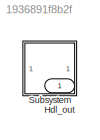
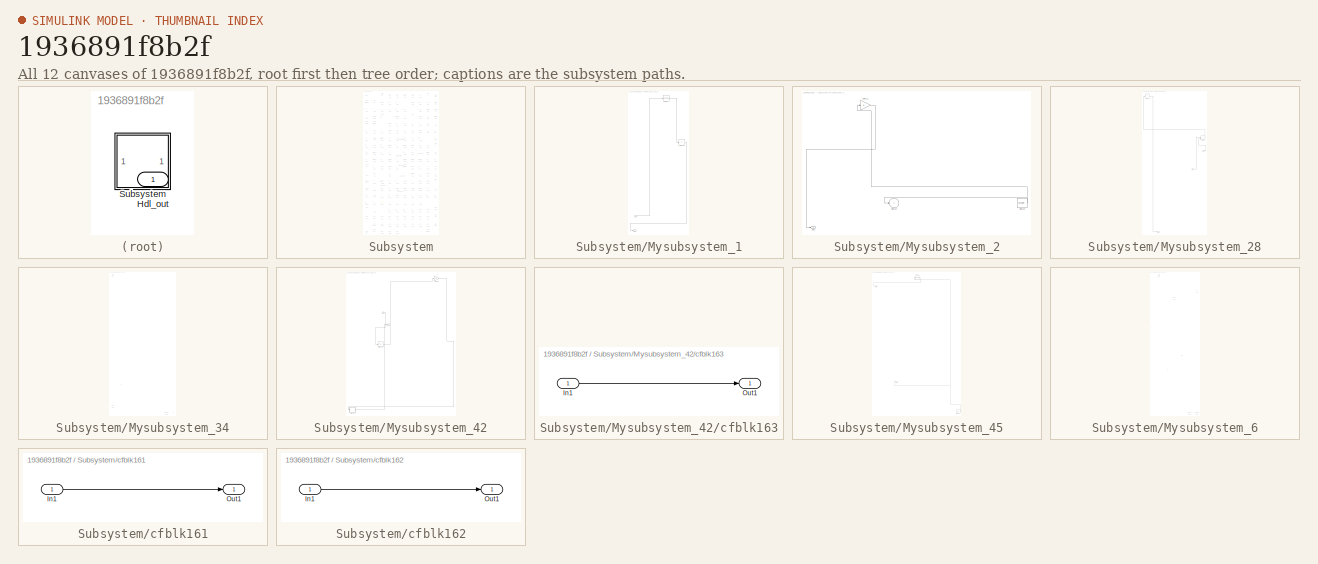
[diagram: thumbnail index - all 12 canvases of the model, root first then tree order]
MODEL slx_1936891f8b2f
KIND model
CONFIG AbsTol = auto
CONFIG EnableMultiTasking = off
CONFIG FixedStep = auto
CONFIG MaxStep = auto
CONFIG MinStep = auto
CONFIG RelTol = 1e-3
CONFIG SampleTimeConstraint = Unconstrained
CONFIG SolverName = VariableStepAuto
CONFIG StartTime = 0.0
CONFIG StopTime = 10.0
BLOCK [Outport] Hdl_out
  OutDataTypeStr = uint8
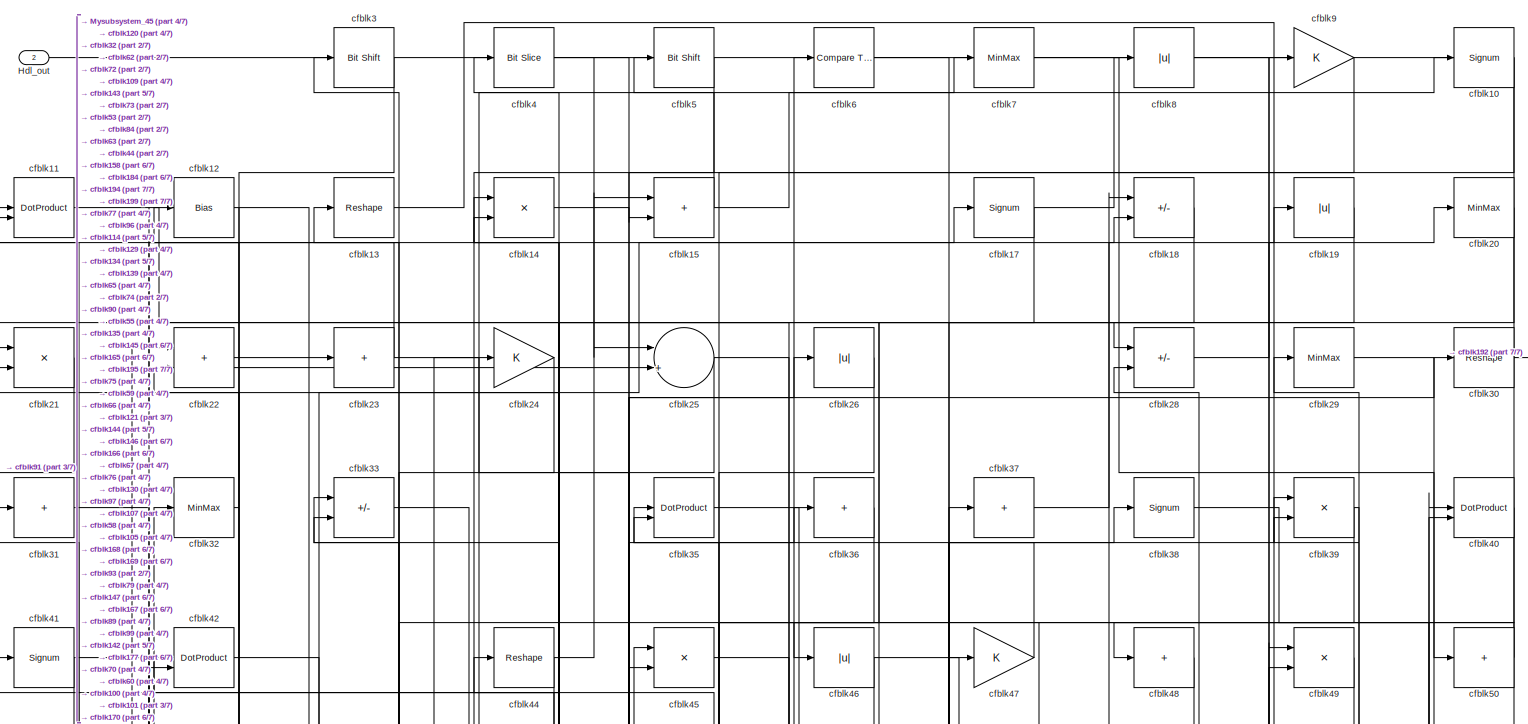
[diagram: Subsystem - part 1/7, full width, top band]
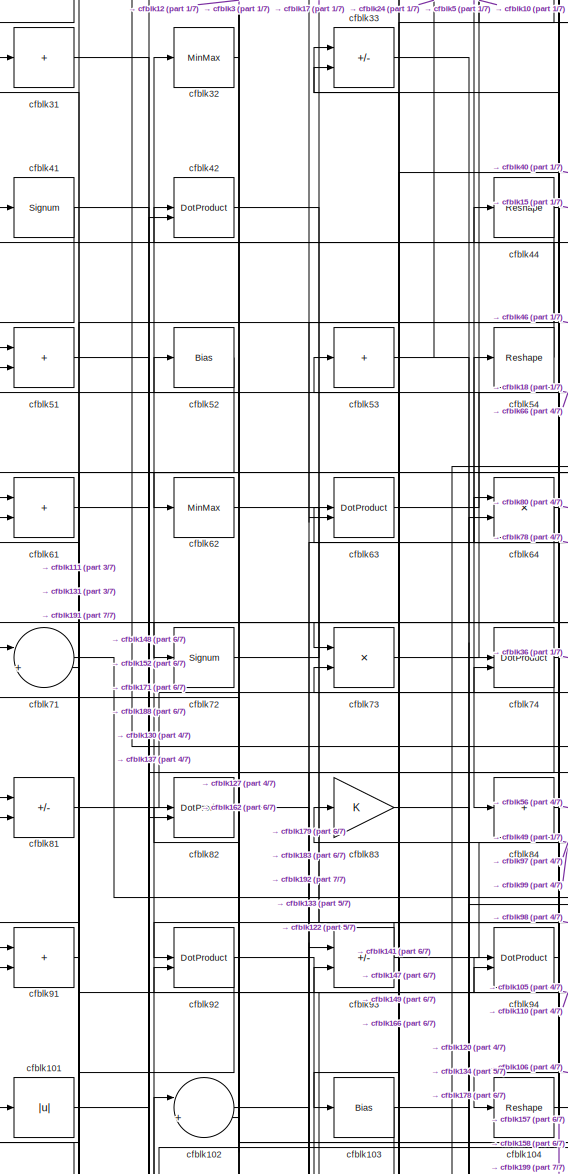
[diagram: Subsystem - part 2/7, middle left region]
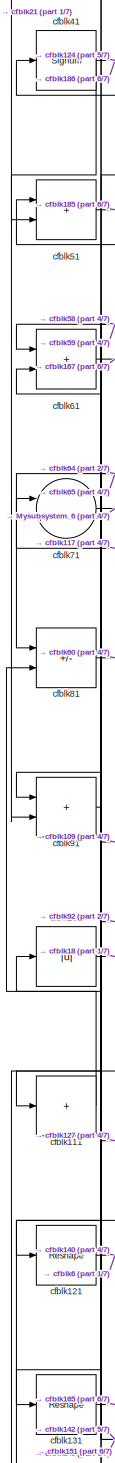
[diagram: Subsystem - part 3/7, middle left region]
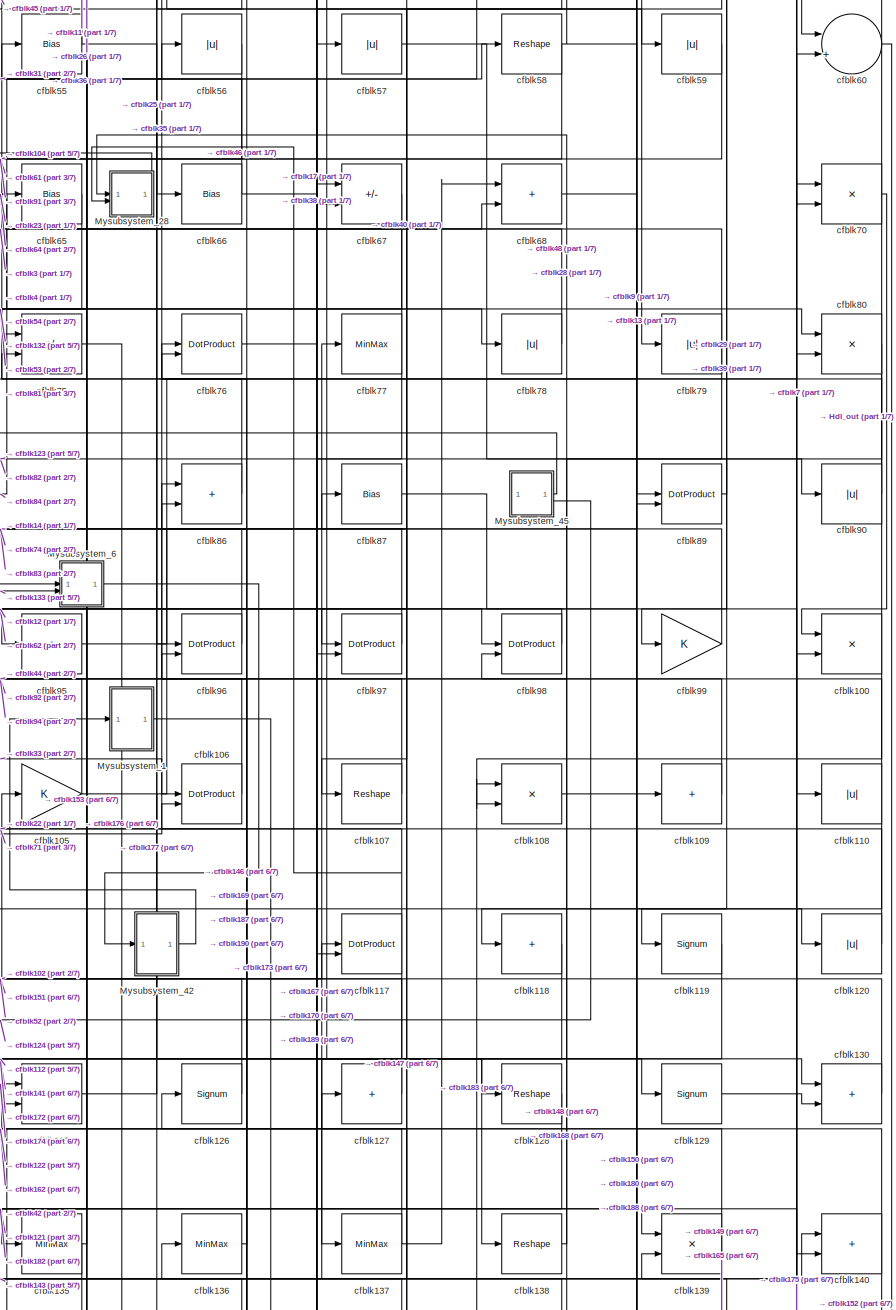
[diagram: Subsystem - part 4/7, middle right region]
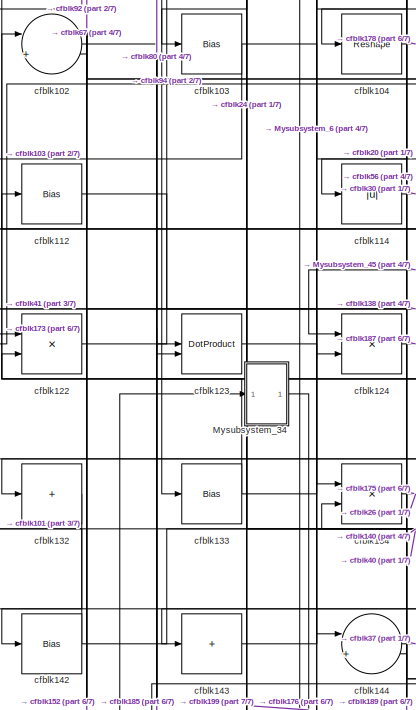
[diagram: Subsystem - part 5/7, middle left region]
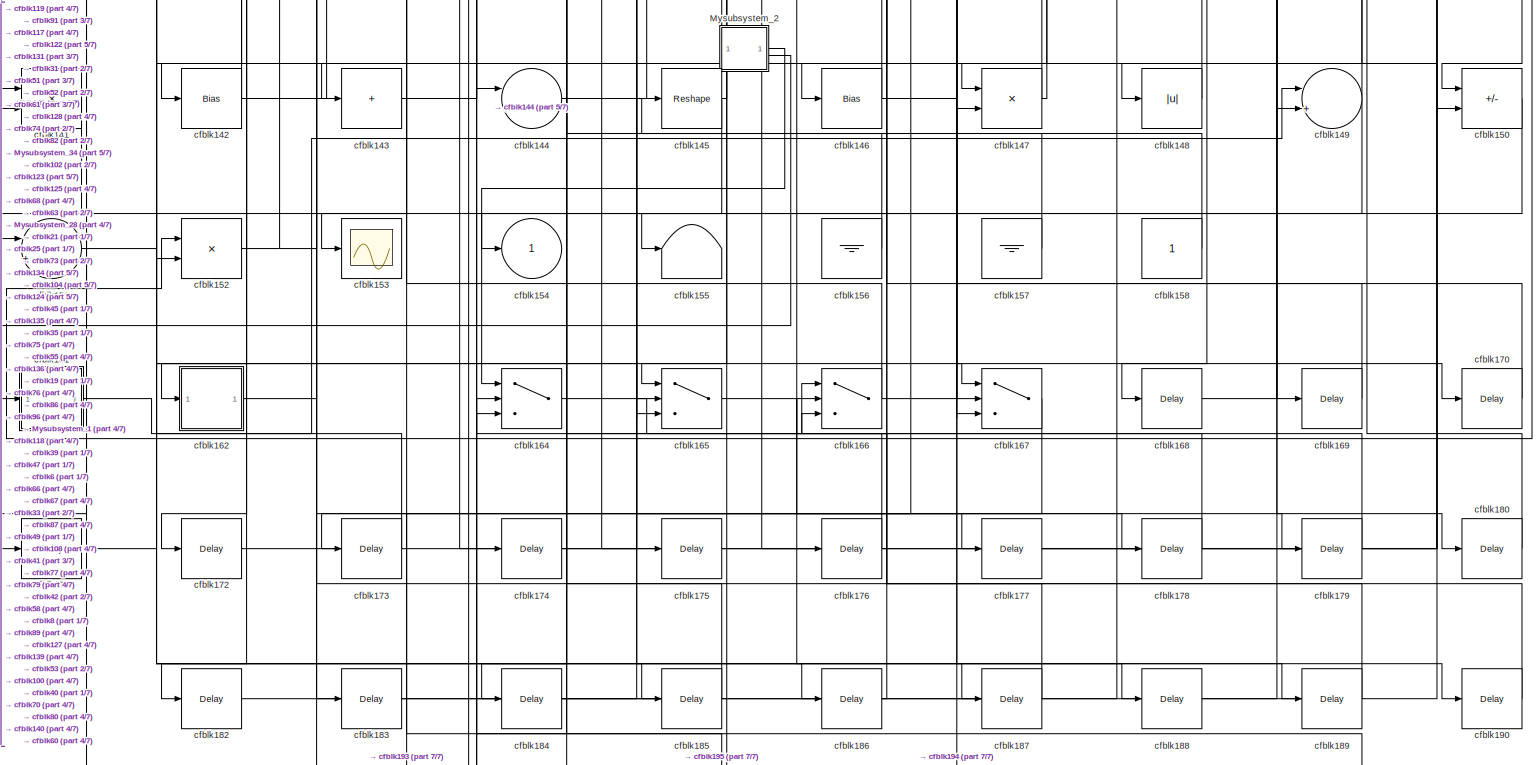
[diagram: Subsystem - part 6/7, full width, bottom band]
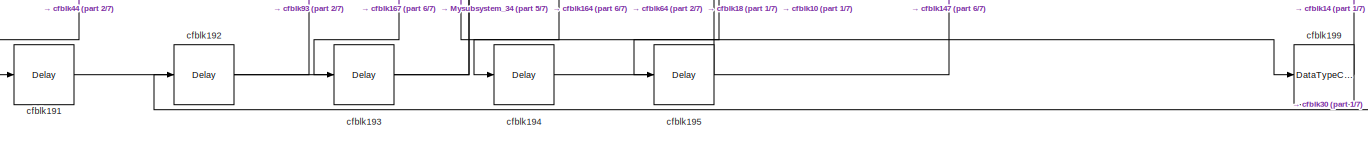
[diagram: Subsystem - part 7/7, full width, bottom band]
BLOCK [SubSystem] Subsystem
BLOCK [Outport] Subsystem/Hdl_out
  OutDataTypeStr = uint8
  Port = 2
BLOCK [SubSystem] Subsystem/Mysubsystem_1
  RTWFcnName = Mysubsystem_1
  RTWFcnNameOpts = User specified
  RTWFileNameOpts = Use function name
  RTWSystemCode = Reusable function
  TreatAsAtomicUnit = on
BLOCK [Inport] Subsystem/Mysubsystem_1/In1
BLOCK [Outport] Subsystem/Mysubsystem_1/Out1
BLOCK [Sum] Subsystem/Mysubsystem_1/cfblk116
  IconShape = rectangular
  Inputs = +
BLOCK [Reshape] Subsystem/Mysubsystem_1/cfblk85
BLOCK [SubSystem] Subsystem/Mysubsystem_2
  RTWFcnName = Mysubsystem_2
  RTWFcnNameOpts = User specified
  RTWFileNameOpts = Use function name
  RTWSystemCode = Reusable function
  TreatAsAtomicUnit = on
BLOCK [Outport] Subsystem/Mysubsystem_2/Out2
  Port = 2
BLOCK [Gain] Subsystem/Mysubsystem_2/cfblk113
BLOCK [Outport] Subsystem/Mysubsystem_2/cfblk154
  VectorParamsAs1DForOutWhenUnconnected = off
BLOCK [Reference] Subsystem/Mysubsystem_2/cfblk159  REF=hdlsllib/Sources/Counter
Free-Running
  SourceBlock = hdlsllib/Sources/Counter\nFree-Running
  SourceType = Counter Free-Running
BLOCK [SubSystem] Subsystem/Mysubsystem_28
  RTWFcnName = Mysubsystem_28
  RTWFcnNameOpts = User specified
  RTWFileNameOpts = Use function name
  RTWSystemCode = Reusable function
  TreatAsAtomicUnit = on
BLOCK [Inport] Subsystem/Mysubsystem_28/In1
BLOCK [Inport] Subsystem/Mysubsystem_28/In2
  Port = 2
BLOCK [Outport] Subsystem/Mysubsystem_28/Out1
BLOCK [Sum] Subsystem/Mysubsystem_28/cfblk43
  IconShape = rectangular
  Inputs = +
BLOCK [Product] Subsystem/Mysubsystem_28/cfblk88
  Inputs = */
  RndMeth = Zero
  SaturateOnIntegerOverflow = on
BLOCK [SubSystem] Subsystem/Mysubsystem_34
  RTWFcnName = Mysubsystem_34
  RTWFcnNameOpts = User specified
  RTWFileNameOpts = Use function name
  RTWSystemCode = Reusable function
  TreatAsAtomicUnit = on
BLOCK [Inport] Subsystem/Mysubsystem_34/In1
BLOCK [Reference] Subsystem/Mysubsystem_34/cfblk1  REF=simulink/Logic and Bit
Operations/Bit Set
  LibrarySourceBlock = hdlsllib/Logic and Bit\nOperations/Bit Set
  SourceBlock = simulink/Logic and Bit\nOperations/Bit Set
  SourceType = Bit Set
BLOCK [Delay] Subsystem/Mysubsystem_34/cfblk181
  InputPortMap = u0
  SampleTime = 1
BLOCK [DataTypeConversion] Subsystem/Mysubsystem_34/cfblk198
  OutDataTypeStr = boolean
  RndMeth = Floor
  SaturateOnIntegerOverflow = off
BLOCK [Outport] Subsystem/Mysubsystem_34/y
BLOCK [SubSystem] Subsystem/Mysubsystem_42
  RTWFcnName = Mysubsystem_42
  RTWFcnNameOpts = User specified
  RTWFileNameOpts = Use function name
  RTWSystemCode = Reusable function
  TreatAsAtomicUnit = on
BLOCK [Inport] Subsystem/Mysubsystem_42/In1
BLOCK [Outport] Subsystem/Mysubsystem_42/Out1
BLOCK [Abs] Subsystem/Mysubsystem_42/cfblk115
  SaturateOnIntegerOverflow = off
BLOCK [SubSystem] Subsystem/Mysubsystem_42/cfblk163
  LibrarySourceBlock = hdlsllib/Ports &\nSubsystems/Subsystem
BLOCK [Inport] Subsystem/Mysubsystem_42/cfblk163/In1
BLOCK [Outport] Subsystem/Mysubsystem_42/cfblk163/Out1
BLOCK [Gain] Subsystem/Mysubsystem_42/cfblk69
BLOCK [SubSystem] Subsystem/Mysubsystem_45
  RTWFcnName = Mysubsystem_45
  RTWFcnNameOpts = User specified
  RTWFileNameOpts = Use function name
  RTWSystemCode = Reusable function
  TreatAsAtomicUnit = on
BLOCK [Outport] Subsystem/Mysubsystem_45/Out1
BLOCK [Outport] Subsystem/Mysubsystem_45/Out2
  Port = 2
BLOCK [Reshape] Subsystem/Mysubsystem_45/cfblk16
BLOCK [Ground] Subsystem/Mysubsystem_45/cfblk160
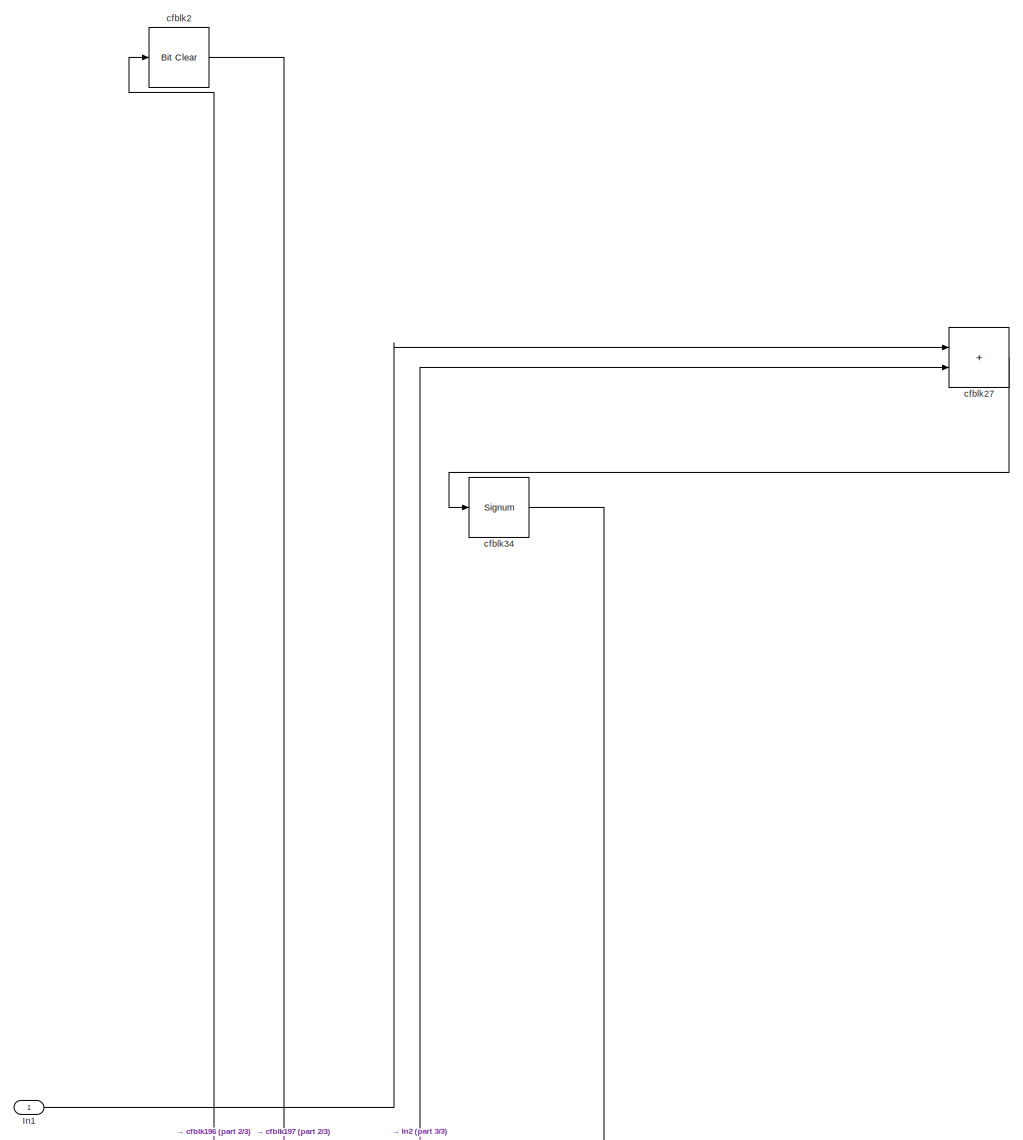
[diagram: Subsystem/Mysubsystem_6 - part 1/3, full width, top band]
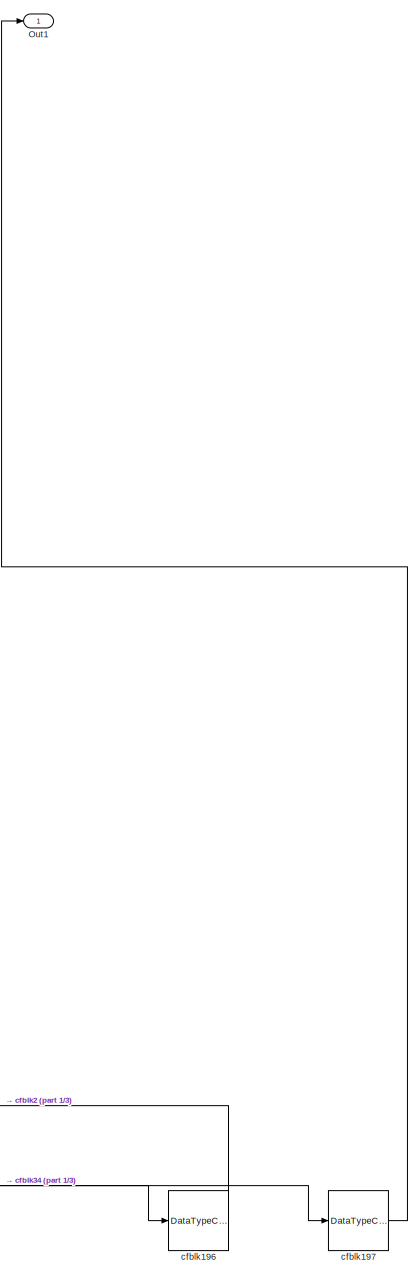
[diagram: Subsystem/Mysubsystem_6 - part 2/3, bottom right region]
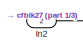
[diagram: Subsystem/Mysubsystem_6 - part 3/3, bottom center region]
BLOCK [SubSystem] Subsystem/Mysubsystem_6
  RTWFcnName = Mysubsystem_6
  RTWFcnNameOpts = User specified
  RTWFileNameOpts = Use function name
  RTWSystemCode = Reusable function
  TreatAsAtomicUnit = on
BLOCK [Inport] Subsystem/Mysubsystem_6/In1
BLOCK [Inport] Subsystem/Mysubsystem_6/In2
  Port = 2
BLOCK [Outport] Subsystem/Mysubsystem_6/Out1
BLOCK [DataTypeConversion] Subsystem/Mysubsystem_6/cfblk196
  OutDataTypeStr = boolean
  RndMeth = Floor
  SaturateOnIntegerOverflow = off
BLOCK [DataTypeConversion] Subsystem/Mysubsystem_6/cfblk197
  OutDataTypeStr = uint8
  RndMeth = Floor
  SaturateOnIntegerOverflow = off
BLOCK [Reference] Subsystem/Mysubsystem_6/cfblk2  REF=simulink/Logic and Bit
Operations/Bit Clear
  LibrarySourceBlock = hdlsllib/Logic and Bit\nOperations/Bit Clear
  SourceBlock = simulink/Logic and Bit\nOperations/Bit Clear
  SourceType = Bit Clear
BLOCK [Sum] Subsystem/Mysubsystem_6/cfblk27
  IconShape = rectangular
BLOCK [Signum] Subsystem/Mysubsystem_6/cfblk34
BLOCK [Signum] Subsystem/cfblk10
BLOCK [Product] Subsystem/cfblk100
  Inputs = */
  OutDataTypeStr = uint8
  RndMeth = Zero
  SaturateOnIntegerOverflow = on
BLOCK [Abs] Subsystem/cfblk101
  OutDataTypeStr = uint8
  SaturateOnIntegerOverflow = off
BLOCK [Sum] Subsystem/cfblk102
  Inputs = |++
  OutDataTypeStr = uint8
BLOCK [Bias] Subsystem/cfblk103
  Bias = 0.0
  SaturateOnIntegerOverflow = off
BLOCK [Reshape] Subsystem/cfblk104
BLOCK [Gain] Subsystem/cfblk105
  OutDataTypeStr = uint8
BLOCK [DotProduct] Subsystem/cfblk106
  OutDataTypeStr = uint8
BLOCK [Reshape] Subsystem/cfblk107
BLOCK [Product] Subsystem/cfblk108
  Inputs = */
  OutDataTypeStr = uint8
  RndMeth = Zero
  SaturateOnIntegerOverflow = on
BLOCK [Sum] Subsystem/cfblk109
  IconShape = rectangular
  Inputs = +
  OutDataTypeStr = uint8
BLOCK [DotProduct] Subsystem/cfblk11
  OutDataTypeStr = uint8
BLOCK [Abs] Subsystem/cfblk110
  OutDataTypeStr = uint8
  SaturateOnIntegerOverflow = off
BLOCK [Sum] Subsystem/cfblk111
  IconShape = rectangular
  Inputs = +
  OutDataTypeStr = uint8
BLOCK [Bias] Subsystem/cfblk112
  Bias = 0.0
  SaturateOnIntegerOverflow = off
BLOCK [Abs] Subsystem/cfblk114
  OutDataTypeStr = uint8
  SaturateOnIntegerOverflow = off
BLOCK [DotProduct] Subsystem/cfblk117
  OutDataTypeStr = uint8
BLOCK [Sum] Subsystem/cfblk118
  IconShape = rectangular
  Inputs = +
  OutDataTypeStr = uint8
BLOCK [Signum] Subsystem/cfblk119
BLOCK [Bias] Subsystem/cfblk12
  Bias = 0.0
  SaturateOnIntegerOverflow = off
BLOCK [Abs] Subsystem/cfblk120
  OutDataTypeStr = uint8
  SaturateOnIntegerOverflow = off
BLOCK [Reshape] Subsystem/cfblk121
BLOCK [Product] Subsystem/cfblk122
  Inputs = */
  OutDataTypeStr = uint8
  RndMeth = Zero
  SaturateOnIntegerOverflow = on
BLOCK [DotProduct] Subsystem/cfblk123
  OutDataTypeStr = uint8
BLOCK [Product] Subsystem/cfblk124
  Inputs = */
  OutDataTypeStr = uint8
  RndMeth = Zero
  SaturateOnIntegerOverflow = on
BLOCK [Sum] Subsystem/cfblk125
  IconShape = rectangular
  OutDataTypeStr = uint8
BLOCK [Signum] Subsystem/cfblk126
BLOCK [Sum] Subsystem/cfblk127
  IconShape = rectangular
  Inputs = +
  OutDataTypeStr = uint8
BLOCK [Reshape] Subsystem/cfblk128
BLOCK [Signum] Subsystem/cfblk129
BLOCK [Reshape] Subsystem/cfblk13
BLOCK [Sum] Subsystem/cfblk130
  IconShape = rectangular
  OutDataTypeStr = uint8
BLOCK [Reshape] Subsystem/cfblk131
BLOCK [Sum] Subsystem/cfblk132
  IconShape = rectangular
  Inputs = +
  OutDataTypeStr = uint8
BLOCK [Bias] Subsystem/cfblk133
  Bias = 0.0
  SaturateOnIntegerOverflow = off
BLOCK [Product] Subsystem/cfblk134
  Inputs = */
  OutDataTypeStr = uint8
  RndMeth = Zero
  SaturateOnIntegerOverflow = on
BLOCK [MinMax] Subsystem/cfblk135
  OutDataTypeStr = uint8
BLOCK [MinMax] Subsystem/cfblk136
  OutDataTypeStr = uint8
BLOCK [MinMax] Subsystem/cfblk137
  OutDataTypeStr = uint8
BLOCK [Reshape] Subsystem/cfblk138
BLOCK [Product] Subsystem/cfblk139
  Inputs = */
  OutDataTypeStr = uint8
  RndMeth = Zero
  SaturateOnIntegerOverflow = on
BLOCK [Product] Subsystem/cfblk14
  Inputs = */
  OutDataTypeStr = uint8
  RndMeth = Zero
  SaturateOnIntegerOverflow = on
BLOCK [Sum] Subsystem/cfblk140
  IconShape = rectangular
  OutDataTypeStr = uint8
BLOCK [Product] Subsystem/cfblk141
  Inputs = */
  OutDataTypeStr = uint8
  RndMeth = Zero
  SaturateOnIntegerOverflow = on
BLOCK [Bias] Subsystem/cfblk142
  Bias = 0.0
  SaturateOnIntegerOverflow = off
BLOCK [Sum] Subsystem/cfblk143
  IconShape = rectangular
  Inputs = +
  OutDataTypeStr = uint8
BLOCK [Sum] Subsystem/cfblk144
  Inputs = |++
  OutDataTypeStr = uint8
BLOCK [Reshape] Subsystem/cfblk145
BLOCK [Bias] Subsystem/cfblk146
  Bias = 0.0
  SaturateOnIntegerOverflow = off
BLOCK [Product] Subsystem/cfblk147
  Inputs = */
  OutDataTypeStr = uint8
  RndMeth = Zero
  SaturateOnIntegerOverflow = on
BLOCK [Abs] Subsystem/cfblk148
  OutDataTypeStr = uint8
  SaturateOnIntegerOverflow = off
BLOCK [Sum] Subsystem/cfblk149
  Inputs = |++
  OutDataTypeStr = uint8
BLOCK [Sum] Subsystem/cfblk15
  IconShape = rectangular
  OutDataTypeStr = uint8
BLOCK [Sum] Subsystem/cfblk150
  IconShape = rectangular
  Inputs = +-
  OutDataTypeStr = uint8
BLOCK [Sum] Subsystem/cfblk151
  Inputs = |++
  OutDataTypeStr = uint8
BLOCK [Product] Subsystem/cfblk152
  Inputs = */
  OutDataTypeStr = uint8
  RndMeth = Zero
  SaturateOnIntegerOverflow = on
BLOCK [Scope] Subsystem/cfblk153
  Floating = off
  NumInputPorts = 1
  ScopeSpecificationString = Simulink.scopes.TimeScopeBlockCfg('CurrentConfiguration', extmgr.ConfigurationSet(extmgr.Configuration('Core','General UI',true),extmgr.Configuration('Core','Source UI',true),extmgr.Configuration('Sources','WiredSimulink',true,'DataLoggingSaveFormat','Array','DataLoggingLimitDataPoints',true,'DataLoggingDecimation','1'),extmgr.Configuration('Visuals','Time Domain',true,'DisplayPropertyDefaults',st...<+829ch>
BLOCK [Outport] Subsystem/cfblk154
  OutDataTypeStr = uint8
  VectorParamsAs1DForOutWhenUnconnected = off
BLOCK [Terminator] Subsystem/cfblk155
BLOCK [Ground] Subsystem/cfblk156
BLOCK [Ground] Subsystem/cfblk157
BLOCK [Constant] Subsystem/cfblk158
  OutDataTypeStr = uint8
  SampleTime = -1
BLOCK [SubSystem] Subsystem/cfblk161
  LibrarySourceBlock = hdlsllib/Ports &\nSubsystems/Subsystem
BLOCK [Inport] Subsystem/cfblk161/In1
BLOCK [Outport] Subsystem/cfblk161/Out1
BLOCK [SubSystem] Subsystem/cfblk162
  LibrarySourceBlock = hdlsllib/Ports &\nSubsystems/Subsystem
BLOCK [Inport] Subsystem/cfblk162/In1
BLOCK [Outport] Subsystem/cfblk162/Out1
BLOCK [Switch] Subsystem/cfblk164
  InputSameDT = off
  OutDataTypeStr = uint8
  SaturateOnIntegerOverflow = off
BLOCK [Switch] Subsystem/cfblk165
  InputSameDT = off
  OutDataTypeStr = uint8
  SaturateOnIntegerOverflow = off
BLOCK [Switch] Subsystem/cfblk166
  InputSameDT = off
  OutDataTypeStr = uint8
  SaturateOnIntegerOverflow = off
BLOCK [Switch] Subsystem/cfblk167
  InputSameDT = off
  OutDataTypeStr = uint8
  SaturateOnIntegerOverflow = off
BLOCK [Delay] Subsystem/cfblk168
  InputPortMap = u0
  SampleTime = 1
BLOCK [Delay] Subsystem/cfblk169
  InputPortMap = u0
  SampleTime = 1
BLOCK [Signum] Subsystem/cfblk17
BLOCK [Delay] Subsystem/cfblk170
  InputPortMap = u0
  SampleTime = 1
BLOCK [Delay] Subsystem/cfblk171
  InputPortMap = u0
  SampleTime = 1
BLOCK [Delay] Subsystem/cfblk172
  InputPortMap = u0
  SampleTime = 1
BLOCK [Delay] Subsystem/cfblk173
  InputPortMap = u0
  SampleTime = 1
BLOCK [Delay] Subsystem/cfblk174
  InputPortMap = u0
  SampleTime = 1
BLOCK [Delay] Subsystem/cfblk175
  InputPortMap = u0
  SampleTime = 1
BLOCK [Delay] Subsystem/cfblk176
  InputPortMap = u0
  SampleTime = 1
BLOCK [Delay] Subsystem/cfblk177
  InputPortMap = u0
  SampleTime = 1
BLOCK [Delay] Subsystem/cfblk178
  InputPortMap = u0
  SampleTime = 1
BLOCK [Delay] Subsystem/cfblk179
  InputPortMap = u0
  SampleTime = 1
BLOCK [Sum] Subsystem/cfblk18
  IconShape = rectangular
  Inputs = +-
  OutDataTypeStr = uint8
BLOCK [Delay] Subsystem/cfblk180
  InputPortMap = u0
  SampleTime = 1
BLOCK [Delay] Subsystem/cfblk182
  InputPortMap = u0
  SampleTime = 1
BLOCK [Delay] Subsystem/cfblk183
  InputPortMap = u0
  SampleTime = 1
BLOCK [Delay] Subsystem/cfblk184
  InputPortMap = u0
  SampleTime = 1
BLOCK [Delay] Subsystem/cfblk185
  InputPortMap = u0
  SampleTime = 1
BLOCK [Delay] Subsystem/cfblk186
  InputPortMap = u0
  SampleTime = 1
BLOCK [Delay] Subsystem/cfblk187
  InputPortMap = u0
  SampleTime = 1
BLOCK [Delay] Subsystem/cfblk188
  InputPortMap = u0
  SampleTime = 1
BLOCK [Delay] Subsystem/cfblk189
  InputPortMap = u0
  SampleTime = 1
BLOCK [Abs] Subsystem/cfblk19
  OutDataTypeStr = uint8
  SaturateOnIntegerOverflow = off
BLOCK [Delay] Subsystem/cfblk190
  InputPortMap = u0
  SampleTime = 1
BLOCK [Delay] Subsystem/cfblk191
  InputPortMap = u0
  SampleTime = 1
BLOCK [Delay] Subsystem/cfblk192
  InputPortMap = u0
  SampleTime = 1
BLOCK [Delay] Subsystem/cfblk193
  InputPortMap = u0
  SampleTime = 1
BLOCK [Delay] Subsystem/cfblk194
  InputPortMap = u0
  SampleTime = 1
BLOCK [Delay] Subsystem/cfblk195
  InputPortMap = u0
  SampleTime = 1
BLOCK [DataTypeConversion] Subsystem/cfblk199
  OutDataTypeStr = uint8
  RndMeth = Floor
  SaturateOnIntegerOverflow = off
BLOCK [MinMax] Subsystem/cfblk20
  OutDataTypeStr = uint8
BLOCK [Product] Subsystem/cfblk21
  Inputs = */
  OutDataTypeStr = uint8
  RndMeth = Zero
  SaturateOnIntegerOverflow = on
BLOCK [Sum] Subsystem/cfblk22
  IconShape = rectangular
  OutDataTypeStr = uint8
BLOCK [Sum] Subsystem/cfblk23
  IconShape = rectangular
  Inputs = +
  OutDataTypeStr = uint8
BLOCK [Gain] Subsystem/cfblk24
  OutDataTypeStr = uint8
BLOCK [Sum] Subsystem/cfblk25
  Inputs = |++
  OutDataTypeStr = uint8
BLOCK [Abs] Subsystem/cfblk26
  OutDataTypeStr = uint8
  SaturateOnIntegerOverflow = off
BLOCK [Sum] Subsystem/cfblk28
  IconShape = rectangular
  Inputs = +-
  OutDataTypeStr = uint8
BLOCK [MinMax] Subsystem/cfblk29
  OutDataTypeStr = uint8
BLOCK [Reference] Subsystem/cfblk3  REF=hdlsllib/Logic and Bit
Operations/Bit Shift
  SourceBlock = hdlsllib/Logic and Bit\nOperations/Bit Shift
  SourceType = Bit Shift
BLOCK [Reshape] Subsystem/cfblk30
BLOCK [Sum] Subsystem/cfblk31
  IconShape = rectangular
  Inputs = +
  OutDataTypeStr = uint8
BLOCK [MinMax] Subsystem/cfblk32
  OutDataTypeStr = uint8
BLOCK [Sum] Subsystem/cfblk33
  IconShape = rectangular
  Inputs = +-
  OutDataTypeStr = uint8
BLOCK [DotProduct] Subsystem/cfblk35
  OutDataTypeStr = uint8
BLOCK [Sum] Subsystem/cfblk36
  IconShape = rectangular
  Inputs = +
  OutDataTypeStr = uint8
BLOCK [Sum] Subsystem/cfblk37
  IconShape = rectangular
  Inputs = +
  OutDataTypeStr = uint8
BLOCK [Signum] Subsystem/cfblk38
BLOCK [Product] Subsystem/cfblk39
  Inputs = */
  OutDataTypeStr = uint8
  RndMeth = Zero
  SaturateOnIntegerOverflow = on
BLOCK [Reference] Subsystem/cfblk4  REF=hdlsllib/Logic and Bit
Operations/Bit Slice
  SourceBlock = hdlsllib/Logic and Bit\nOperations/Bit Slice
  SourceType = Bit Slice
BLOCK [DotProduct] Subsystem/cfblk40
  OutDataTypeStr = uint8
BLOCK [Signum] Subsystem/cfblk41
BLOCK [DotProduct] Subsystem/cfblk42
  OutDataTypeStr = uint8
BLOCK [Reshape] Subsystem/cfblk44
BLOCK [Product] Subsystem/cfblk45
  Inputs = */
  OutDataTypeStr = uint8
  RndMeth = Zero
  SaturateOnIntegerOverflow = on
BLOCK [Abs] Subsystem/cfblk46
  OutDataTypeStr = uint8
  SaturateOnIntegerOverflow = off
BLOCK [Gain] Subsystem/cfblk47
  OutDataTypeStr = uint8
BLOCK [Sum] Subsystem/cfblk48
  IconShape = rectangular
  Inputs = +
  OutDataTypeStr = uint8
BLOCK [Product] Subsystem/cfblk49
  Inputs = */
  OutDataTypeStr = uint8
  RndMeth = Zero
  SaturateOnIntegerOverflow = on
BLOCK [Reference] Subsystem/cfblk5  REF=hdlsllib/Logic and Bit
Operations/Bit Shift
  SourceBlock = hdlsllib/Logic and Bit\nOperations/Bit Shift
  SourceType = Bit Shift
BLOCK [Sum] Subsystem/cfblk50
  IconShape = rectangular
  Inputs = +
  OutDataTypeStr = uint8
BLOCK [Sum] Subsystem/cfblk51
  IconShape = rectangular
  OutDataTypeStr = uint8
BLOCK [Bias] Subsystem/cfblk52
  Bias = 0.0
  SaturateOnIntegerOverflow = off
BLOCK [Sum] Subsystem/cfblk53
  IconShape = rectangular
  Inputs = +
  OutDataTypeStr = uint8
BLOCK [Reshape] Subsystem/cfblk54
BLOCK [Bias] Subsystem/cfblk55
  Bias = 0.0
  SaturateOnIntegerOverflow = off
BLOCK [Abs] Subsystem/cfblk56
  OutDataTypeStr = uint8
  SaturateOnIntegerOverflow = off
BLOCK [Abs] Subsystem/cfblk57
  OutDataTypeStr = uint8
  SaturateOnIntegerOverflow = off
BLOCK [Reshape] Subsystem/cfblk58
BLOCK [Abs] Subsystem/cfblk59
  OutDataTypeStr = uint8
  SaturateOnIntegerOverflow = off
BLOCK [Reference] Subsystem/cfblk6  REF=hdlsllib/Logic and Bit
Operations/Compare
To Constant
  SourceBlock = hdlsllib/Logic and Bit\nOperations/Compare\nTo Constant
  SourceType = Compare To Constant
BLOCK [Sum] Subsystem/cfblk60
  Inputs = |++
  OutDataTypeStr = uint8
BLOCK [Sum] Subsystem/cfblk61
  IconShape = rectangular
  OutDataTypeStr = uint8
BLOCK [MinMax] Subsystem/cfblk62
  OutDataTypeStr = uint8
BLOCK [DotProduct] Subsystem/cfblk63
  OutDataTypeStr = uint8
BLOCK [Product] Subsystem/cfblk64
  Inputs = */
  OutDataTypeStr = uint8
  RndMeth = Zero
  SaturateOnIntegerOverflow = on
BLOCK [Bias] Subsystem/cfblk65
  Bias = 0.0
  SaturateOnIntegerOverflow = off
BLOCK [Bias] Subsystem/cfblk66
  Bias = 0.0
  SaturateOnIntegerOverflow = off
BLOCK [Sum] Subsystem/cfblk67
  IconShape = rectangular
  Inputs = +-
  OutDataTypeStr = uint8
BLOCK [Sum] Subsystem/cfblk68
  IconShape = rectangular
  OutDataTypeStr = uint8
BLOCK [MinMax] Subsystem/cfblk7
  OutDataTypeStr = uint8
BLOCK [Product] Subsystem/cfblk70
  Inputs = */
  OutDataTypeStr = uint8
  RndMeth = Zero
  SaturateOnIntegerOverflow = on
BLOCK [Sum] Subsystem/cfblk71
  Inputs = |++
  OutDataTypeStr = uint8
BLOCK [Signum] Subsystem/cfblk72
BLOCK [Product] Subsystem/cfblk73
  Inputs = */
  OutDataTypeStr = uint8
  RndMeth = Zero
  SaturateOnIntegerOverflow = on
BLOCK [DotProduct] Subsystem/cfblk74
  OutDataTypeStr = uint8
BLOCK [Sum] Subsystem/cfblk75
  IconShape = rectangular
  Inputs = +-
  OutDataTypeStr = uint8
BLOCK [DotProduct] Subsystem/cfblk76
  OutDataTypeStr = uint8
BLOCK [MinMax] Subsystem/cfblk77
  OutDataTypeStr = uint8
BLOCK [Abs] Subsystem/cfblk78
  OutDataTypeStr = uint8
  SaturateOnIntegerOverflow = off
BLOCK [Abs] Subsystem/cfblk79
  OutDataTypeStr = uint8
  SaturateOnIntegerOverflow = off
BLOCK [Abs] Subsystem/cfblk8
  OutDataTypeStr = uint8
  SaturateOnIntegerOverflow = off
BLOCK [Product] Subsystem/cfblk80
  Inputs = */
  OutDataTypeStr = uint8
  RndMeth = Zero
  SaturateOnIntegerOverflow = on
BLOCK [Sum] Subsystem/cfblk81
  IconShape = rectangular
  Inputs = +-
  OutDataTypeStr = uint8
BLOCK [DotProduct] Subsystem/cfblk82
  OutDataTypeStr = uint8
BLOCK [Gain] Subsystem/cfblk83
  OutDataTypeStr = uint8
BLOCK [Sum] Subsystem/cfblk84
  IconShape = rectangular
  Inputs = +
  OutDataTypeStr = uint8
BLOCK [Sum] Subsystem/cfblk86
  IconShape = rectangular
  OutDataTypeStr = uint8
BLOCK [Bias] Subsystem/cfblk87
  Bias = 0.0
  SaturateOnIntegerOverflow = off
BLOCK [DotProduct] Subsystem/cfblk89
  OutDataTypeStr = uint8
BLOCK [Gain] Subsystem/cfblk9
  OutDataTypeStr = uint8
BLOCK [Abs] Subsystem/cfblk90
  OutDataTypeStr = uint8
  SaturateOnIntegerOverflow = off
BLOCK [Sum] Subsystem/cfblk91
  IconShape = rectangular
  OutDataTypeStr = uint8
BLOCK [DotProduct] Subsystem/cfblk92
  OutDataTypeStr = uint8
BLOCK [Sum] Subsystem/cfblk93
  IconShape = rectangular
  Inputs = +-
  OutDataTypeStr = uint8
BLOCK [DotProduct] Subsystem/cfblk94
  OutDataTypeStr = uint8
BLOCK [Sum] Subsystem/cfblk95
  IconShape = rectangular
  Inputs = +
  OutDataTypeStr = uint8
BLOCK [DotProduct] Subsystem/cfblk96
  OutDataTypeStr = uint8
BLOCK [DotProduct] Subsystem/cfblk97
  OutDataTypeStr = uint8
BLOCK [DotProduct] Subsystem/cfblk98
  OutDataTypeStr = uint8
BLOCK [Gain] Subsystem/cfblk99
  OutDataTypeStr = uint8
LINE Subsystem/Mysubsystem_1/In1:1 -> Subsystem/Mysubsystem_1/cfblk85:1
LINE Subsystem/Mysubsystem_1/cfblk116:1 -> Subsystem/Mysubsystem_1/Out1:1
LINE Subsystem/Mysubsystem_1/cfblk85:1 -> Subsystem/Mysubsystem_1/cfblk116:1
LINE Subsystem/Mysubsystem_1:1 -> Subsystem/cfblk173:1
LINE Subsystem/Mysubsystem_2/cfblk113:1 -> Subsystem/Mysubsystem_2/Out2:1
NET Subsystem/Mysubsystem_2/cfblk159:1 -> Subsystem/Mysubsystem_2/cfblk113:1, Subsystem/Mysubsystem_2/cfblk154:1
LINE Subsystem/Mysubsystem_28/In1:1 -> Subsystem/Mysubsystem_28/cfblk88:2
LINE Subsystem/Mysubsystem_28/In2:1 -> Subsystem/Mysubsystem_28/cfblk88:1
LINE Subsystem/Mysubsystem_28/cfblk43:1 -> Subsystem/Mysubsystem_28/Out1:1
LINE Subsystem/Mysubsystem_28/cfblk88:1 -> Subsystem/Mysubsystem_28/cfblk43:1
LINE Subsystem/Mysubsystem_28:1 -> Subsystem/cfblk174:1
LINE Subsystem/Mysubsystem_2:1 -> Subsystem/cfblk154:1
LINE Subsystem/Mysubsystem_2:2 -> Subsystem/cfblk161:1
LINE Subsystem/Mysubsystem_34/In1:1 -> Subsystem/Mysubsystem_34/cfblk181:1
LINE Subsystem/Mysubsystem_34/cfblk181:1 -> Subsystem/Mysubsystem_34/cfblk198:1
LINE Subsystem/Mysubsystem_34/cfblk198:1 -> Subsystem/Mysubsystem_34/cfblk1:1
LINE Subsystem/Mysubsystem_34/cfblk1:1 -> Subsystem/Mysubsystem_34/y:1
LINE Subsystem/Mysubsystem_34:1 -> Subsystem/cfblk199:1
LINE Subsystem/Mysubsystem_42/In1:1 -> Subsystem/Mysubsystem_42/cfblk115:1
LINE Subsystem/Mysubsystem_42/cfblk115:1 -> Subsystem/Mysubsystem_42/cfblk69:1
LINE Subsystem/Mysubsystem_42/cfblk163/In1:1 -> Subsystem/Mysubsystem_42/cfblk163/Out1:1
LINE Subsystem/Mysubsystem_42/cfblk163:1 -> Subsystem/Mysubsystem_42/Out1:1
LINE Subsystem/Mysubsystem_42/cfblk69:1 -> Subsystem/Mysubsystem_42/cfblk163:1
LINE Subsystem/Mysubsystem_42:1 -> Subsystem/Mysubsystem_1:1
NET Subsystem/Mysubsystem_45/cfblk160:1 -> Subsystem/Mysubsystem_45/Out2:1, Subsystem/Mysubsystem_45/cfblk16:1
LINE Subsystem/Mysubsystem_45/cfblk16:1 -> Subsystem/Mysubsystem_45/Out1:1
LINE Subsystem/Mysubsystem_45:1 -> Subsystem/cfblk22:1
LINE Subsystem/Mysubsystem_45:2 -> Subsystem/cfblk124:1
LINE Subsystem/Mysubsystem_6/In1:1 -> Subsystem/Mysubsystem_6/cfblk27:1
LINE Subsystem/Mysubsystem_6/In2:1 -> Subsystem/Mysubsystem_6/cfblk27:2
LINE Subsystem/Mysubsystem_6/cfblk196:1 -> Subsystem/Mysubsystem_6/cfblk2:1
LINE Subsystem/Mysubsystem_6/cfblk197:1 -> Subsystem/Mysubsystem_6/Out1:1
LINE Subsystem/Mysubsystem_6/cfblk27:1 -> Subsystem/Mysubsystem_6/cfblk34:1
LINE Subsystem/Mysubsystem_6/cfblk2:1 -> Subsystem/Mysubsystem_6/cfblk197:1
LINE Subsystem/Mysubsystem_6/cfblk34:1 -> Subsystem/Mysubsystem_6/cfblk196:1
LINE Subsystem/Mysubsystem_6:1 -> Subsystem/Mysubsystem_42:1
NET Subsystem/cfblk100:1 -> Subsystem/Hdl_out:1, Subsystem/cfblk108:2
LINE Subsystem/cfblk101:1 -> Subsystem/cfblk18:2
LINE Subsystem/cfblk102:1 -> Subsystem/cfblk183:1
NET Subsystem/cfblk103:1 -> Subsystem/cfblk134:1, Subsystem/cfblk141:2
LINE Subsystem/cfblk104:1 -> Subsystem/cfblk178:1
NET Subsystem/cfblk105:1 -> Subsystem/cfblk128:1, Subsystem/cfblk92:2, Subsystem/cfblk9:1
LINE Subsystem/cfblk106:1 -> Subsystem/cfblk44:1
LINE Subsystem/cfblk107:1 -> Subsystem/cfblk86:1
LINE Subsystem/cfblk108:1 -> Subsystem/cfblk109:1
NET Subsystem/cfblk109:1 -> Subsystem/cfblk13:1, Subsystem/cfblk61:2
LINE Subsystem/cfblk10:1 -> Subsystem/cfblk195:1
NET Subsystem/cfblk110:1 -> Subsystem/cfblk118:1, Subsystem/cfblk94:2
LINE Subsystem/cfblk111:1 -> Subsystem/cfblk81:2
LINE Subsystem/cfblk112:1 -> Subsystem/cfblk138:1
LINE Subsystem/cfblk114:1 -> Subsystem/cfblk30:1
NET Subsystem/cfblk117:1 -> Subsystem/Mysubsystem_28:2, Subsystem/cfblk172:1, Subsystem/cfblk71:1
NET Subsystem/cfblk118:1 -> Subsystem/cfblk137:1, Subsystem/cfblk167:3
LINE Subsystem/cfblk119:1 -> Subsystem/cfblk141:1
NET Subsystem/cfblk11:1 -> Subsystem/cfblk25:2, Subsystem/cfblk96:1
LINE Subsystem/cfblk120:1 -> Subsystem/cfblk22:2
NET Subsystem/cfblk121:1 -> Subsystem/cfblk140:2, Subsystem/cfblk6:1
LINE Subsystem/cfblk122:1 -> Subsystem/cfblk94:1
LINE Subsystem/cfblk123:1 -> Subsystem/cfblk144:1
LINE Subsystem/cfblk124:1 -> Subsystem/cfblk187:1
LINE Subsystem/cfblk125:1 -> Subsystem/cfblk58:1
LINE Subsystem/cfblk126:1 -> Subsystem/cfblk105:1
NET Subsystem/cfblk127:1 -> Subsystem/cfblk52:1, Subsystem/cfblk71:2
LINE Subsystem/cfblk128:1 -> Subsystem/cfblk182:1
LINE Subsystem/cfblk129:1 -> Subsystem/cfblk130:2
NET Subsystem/cfblk12:1 -> Subsystem/cfblk62:1, Subsystem/cfblk97:2
LINE Subsystem/cfblk130:1 -> Subsystem/cfblk102:1
NET Subsystem/cfblk131:1 -> Subsystem/cfblk165:3, Subsystem/cfblk51:1
LINE Subsystem/cfblk132:1 -> Subsystem/cfblk142:1
NET Subsystem/cfblk133:1 -> Subsystem/Mysubsystem_6:2, Subsystem/cfblk112:1
NET Subsystem/cfblk134:1 -> Subsystem/cfblk175:1, Subsystem/cfblk26:1
NET Subsystem/cfblk135:1 -> Subsystem/cfblk153:1, Subsystem/cfblk75:2
LINE Subsystem/cfblk136:1 -> Subsystem/cfblk106:2
NET Subsystem/cfblk137:1 -> Subsystem/cfblk42:1, Subsystem/cfblk68:1
NET Subsystem/cfblk138:1 -> Subsystem/Mysubsystem_28:1, Subsystem/cfblk98:2
NET Subsystem/cfblk139:1 -> Subsystem/cfblk126:1, Subsystem/cfblk165:2
LINE Subsystem/cfblk13:1 -> Subsystem/cfblk79:1
NET Subsystem/cfblk140:1 -> Subsystem/cfblk122:2, Subsystem/cfblk150:1
LINE Subsystem/cfblk141:1 -> Subsystem/cfblk151:1
NET Subsystem/cfblk142:1 -> Subsystem/cfblk101:1, Subsystem/cfblk40:1
LINE Subsystem/cfblk143:1 -> Subsystem/cfblk140:1
LINE Subsystem/cfblk144:1 -> Subsystem/cfblk37:1
NET Subsystem/cfblk145:1 -> Subsystem/cfblk155:1, Subsystem/cfblk35:2
NET Subsystem/cfblk146:1 -> Subsystem/cfblk136:1, Subsystem/cfblk39:1
NET Subsystem/cfblk147:1 -> Subsystem/cfblk33:2, Subsystem/cfblk87:1
NET Subsystem/cfblk148:1 -> Subsystem/cfblk41:1, Subsystem/cfblk77:1
NET Subsystem/cfblk149:1 -> Subsystem/cfblk127:1, Subsystem/cfblk164:1, Subsystem/cfblk53:1
LINE Subsystem/cfblk14:1 -> Subsystem/cfblk139:1
LINE Subsystem/cfblk150:1 -> Subsystem/cfblk171:1
LINE Subsystem/cfblk151:1 -> Subsystem/cfblk117:1
NET Subsystem/cfblk152:1 -> Subsystem/Mysubsystem_34:1, Subsystem/cfblk68:2, Subsystem/cfblk82:1
LINE Subsystem/cfblk156:1 -> Subsystem/cfblk145:1
LINE Subsystem/cfblk157:1 -> Subsystem/cfblk33:1
NET Subsystem/cfblk158:1 -> Subsystem/cfblk21:1, Subsystem/cfblk73:2
NET Subsystem/cfblk15:1 -> Subsystem/cfblk5:1, Subsystem/cfblk7:1
LINE Subsystem/cfblk161/In1:1 -> Subsystem/cfblk161/Out1:1
LINE Subsystem/cfblk161:1 -> Subsystem/cfblk149:1
LINE Subsystem/cfblk162/In1:1 -> Subsystem/cfblk162/Out1:1
LINE Subsystem/cfblk162:1 -> Subsystem/cfblk125:2
LINE Subsystem/cfblk164:1 -> Subsystem/cfblk166:1
LINE Subsystem/cfblk165:1 -> Subsystem/cfblk190:1
NET Subsystem/cfblk166:1 -> Subsystem/cfblk47:1, Subsystem/cfblk63:1
LINE Subsystem/cfblk167:1 -> Subsystem/cfblk193:1
LINE Subsystem/cfblk168:1 -> Subsystem/cfblk49:2
LINE Subsystem/cfblk169:1 -> Subsystem/cfblk76:2
LINE Subsystem/cfblk170:1 -> Subsystem/cfblk67:1
LINE Subsystem/cfblk171:1 -> Subsystem/cfblk42:2
LINE Subsystem/cfblk172:1 -> Subsystem/cfblk80:2
LINE Subsystem/cfblk173:1 -> Subsystem/cfblk122:1
LINE Subsystem/cfblk174:1 -> Subsystem/cfblk125:1
LINE Subsystem/cfblk175:1 -> Subsystem/cfblk70:1
LINE Subsystem/cfblk176:1 -> Subsystem/cfblk134:2
LINE Subsystem/cfblk177:1 -> Subsystem/cfblk40:2
LINE Subsystem/cfblk178:1 -> Subsystem/cfblk74:1
LINE Subsystem/cfblk179:1 -> Subsystem/cfblk166:2
NET Subsystem/cfblk17:1 -> Subsystem/cfblk67:2, Subsystem/cfblk8:1
LINE Subsystem/cfblk180:1 -> Subsystem/cfblk139:2
LINE Subsystem/cfblk182:1 -> Subsystem/cfblk100:2
LINE Subsystem/cfblk183:1 -> Subsystem/cfblk108:1
LINE Subsystem/cfblk184:1 -> Subsystem/cfblk45:2
LINE Subsystem/cfblk185:1 -> Subsystem/cfblk123:1
LINE Subsystem/cfblk186:1 -> Subsystem/cfblk166:3
LINE Subsystem/cfblk187:1 -> Subsystem/cfblk86:2
LINE Subsystem/cfblk188:1 -> Subsystem/cfblk89:2
LINE Subsystem/cfblk189:1 -> Subsystem/cfblk144:2
NET Subsystem/cfblk18:1 -> Subsystem/cfblk194:1, Subsystem/cfblk46:1
LINE Subsystem/cfblk190:1 -> Subsystem/cfblk96:2
LINE Subsystem/cfblk191:1 -> Subsystem/cfblk64:2
LINE Subsystem/cfblk192:1 -> Subsystem/cfblk93:1
LINE Subsystem/cfblk193:1 -> Subsystem/cfblk164:3
LINE Subsystem/cfblk194:1 -> Subsystem/cfblk147:2
LINE Subsystem/cfblk195:1 -> Subsystem/cfblk164:2
NET Subsystem/cfblk199:1 -> Subsystem/cfblk14:2, Subsystem/cfblk93:2
NET Subsystem/cfblk19:1 -> Subsystem/cfblk146:1, Subsystem/cfblk28:1
NET Subsystem/cfblk20:1 -> Subsystem/cfblk114:1, Subsystem/cfblk21:2
LINE Subsystem/cfblk21:1 -> Subsystem/cfblk91:2
LINE Subsystem/cfblk22:1 -> Subsystem/cfblk23:1
NET Subsystem/cfblk23:1 -> Subsystem/cfblk11:1, Subsystem/cfblk65:1
LINE Subsystem/cfblk24:1 -> Subsystem/cfblk143:1
NET Subsystem/cfblk25:1 -> Subsystem/cfblk184:1, Subsystem/cfblk59:1
LINE Subsystem/cfblk26:1 -> Subsystem/cfblk75:1
LINE Subsystem/cfblk28:1 -> Subsystem/cfblk20:1
LINE Subsystem/cfblk29:1 -> Subsystem/cfblk50:1
LINE Subsystem/cfblk30:1 -> Subsystem/cfblk192:1
NET Subsystem/cfblk31:1 -> Subsystem/cfblk148:1, Subsystem/cfblk188:1
NET Subsystem/cfblk32:1 -> Subsystem/cfblk102:2, Subsystem/cfblk12:1
LINE Subsystem/cfblk33:1 -> Subsystem/cfblk106:1
LINE Subsystem/cfblk35:1 -> Subsystem/cfblk89:1
LINE Subsystem/cfblk36:1 -> Subsystem/cfblk135:1
LINE Subsystem/cfblk37:1 -> Subsystem/cfblk19:1
LINE Subsystem/cfblk38:1 -> Subsystem/cfblk70:2
NET Subsystem/cfblk39:1 -> Subsystem/cfblk165:1, Subsystem/cfblk99:1
LINE Subsystem/cfblk3:1 -> Subsystem/cfblk72:1
NET Subsystem/cfblk40:1 -> Subsystem/cfblk73:1, Subsystem/cfblk97:1
NET Subsystem/cfblk41:1 -> Subsystem/cfblk124:2, Subsystem/cfblk186:1, Subsystem/cfblk51:2
LINE Subsystem/cfblk42:1 -> Subsystem/cfblk149:2
NET Subsystem/cfblk44:1 -> Subsystem/cfblk15:1, Subsystem/cfblk191:1
LINE Subsystem/cfblk45:1 -> Subsystem/cfblk66:1
NET Subsystem/cfblk46:1 -> Subsystem/cfblk130:1, Subsystem/cfblk63:2
LINE Subsystem/cfblk47:1 -> Subsystem/cfblk35:1
LINE Subsystem/cfblk48:1 -> Subsystem/cfblk107:1
NET Subsystem/cfblk49:1 -> Subsystem/cfblk147:1, Subsystem/cfblk167:2
NET Subsystem/cfblk4:1 -> Subsystem/cfblk129:1, Subsystem/cfblk25:1
LINE Subsystem/cfblk50:1 -> Subsystem/cfblk48:1
LINE Subsystem/cfblk51:1 -> Subsystem/cfblk185:1
LINE Subsystem/cfblk52:1 -> Subsystem/cfblk152:2
NET Subsystem/cfblk53:1 -> Subsystem/cfblk24:1, Subsystem/cfblk78:1
LINE Subsystem/cfblk54:1 -> Subsystem/cfblk32:1
NET Subsystem/cfblk55:1 -> Subsystem/cfblk11:2, Subsystem/cfblk177:1
LINE Subsystem/cfblk56:1 -> Subsystem/cfblk104:1
LINE Subsystem/cfblk57:1 -> Subsystem/cfblk90:1
NET Subsystem/cfblk58:1 -> Subsystem/cfblk121:1, Subsystem/cfblk150:2, Subsystem/cfblk28:2, Subsystem/cfblk61:1
LINE Subsystem/cfblk59:1 -> Subsystem/cfblk91:1
LINE Subsystem/cfblk5:1 -> Subsystem/cfblk84:1
LINE Subsystem/cfblk60:1 -> Subsystem/cfblk152:1
LINE Subsystem/cfblk61:1 -> Subsystem/cfblk167:1
LINE Subsystem/cfblk62:1 -> Subsystem/cfblk98:1
LINE Subsystem/cfblk63:1 -> Subsystem/cfblk10:1
NET Subsystem/cfblk64:1 -> Subsystem/cfblk131:1, Subsystem/cfblk80:1
LINE Subsystem/cfblk65:1 -> Subsystem/cfblk81:1
NET Subsystem/cfblk66:1 -> Subsystem/cfblk189:1, Subsystem/cfblk31:1
LINE Subsystem/cfblk67:1 -> Subsystem/cfblk132:1
LINE Subsystem/cfblk68:1 -> Subsystem/cfblk180:1
LINE Subsystem/cfblk6:1 -> Subsystem/cfblk170:1
LINE Subsystem/cfblk70:1 -> Subsystem/cfblk100:1
LINE Subsystem/cfblk71:1 -> Subsystem/Mysubsystem_6:1
LINE Subsystem/cfblk72:1 -> Subsystem/cfblk17:1
LINE Subsystem/cfblk73:1 -> Subsystem/cfblk18:1
NET Subsystem/cfblk74:1 -> Subsystem/cfblk162:1, Subsystem/cfblk36:1
NET Subsystem/cfblk75:1 -> Subsystem/cfblk176:1, Subsystem/cfblk55:1
LINE Subsystem/cfblk76:1 -> Subsystem/cfblk38:1
NET Subsystem/cfblk77:1 -> Subsystem/cfblk117:2, Subsystem/cfblk4:1
LINE Subsystem/cfblk78:1 -> Subsystem/cfblk54:1
NET Subsystem/cfblk79:1 -> Subsystem/cfblk168:1, Subsystem/cfblk3:1
LINE Subsystem/cfblk7:1 -> Subsystem/cfblk60:1
NET Subsystem/cfblk80:1 -> Subsystem/cfblk119:1, Subsystem/cfblk123:2, Subsystem/cfblk82:2
LINE Subsystem/cfblk81:1 -> Subsystem/cfblk60:2
LINE Subsystem/cfblk82:1 -> Subsystem/cfblk179:1
NET Subsystem/cfblk83:1 -> Subsystem/cfblk103:1, Subsystem/cfblk120:1
LINE Subsystem/cfblk84:1 -> Subsystem/cfblk56:1
LINE Subsystem/cfblk86:1 -> Subsystem/cfblk76:1
LINE Subsystem/cfblk87:1 -> Subsystem/cfblk110:1
NET Subsystem/cfblk89:1 -> Subsystem/cfblk29:1, Subsystem/cfblk39:2
LINE Subsystem/cfblk8:1 -> Subsystem/cfblk169:1
LINE Subsystem/cfblk90:1 -> Subsystem/cfblk45:1
LINE Subsystem/cfblk91:1 -> Subsystem/cfblk151:2
NET Subsystem/cfblk92:1 -> Subsystem/cfblk111:1, Subsystem/cfblk133:1
NET Subsystem/cfblk93:1 -> Subsystem/cfblk49:1, Subsystem/cfblk92:1
LINE Subsystem/cfblk94:1 -> Subsystem/cfblk64:1
LINE Subsystem/cfblk95:1 -> Subsystem/cfblk57:1
LINE Subsystem/cfblk96:1 -> Subsystem/cfblk14:1
LINE Subsystem/cfblk97:1 -> Subsystem/cfblk74:2
LINE Subsystem/cfblk98:1 -> Subsystem/cfblk95:1
LINE Subsystem/cfblk99:1 -> Subsystem/cfblk83:1
LINE Subsystem/cfblk9:1 -> Subsystem/cfblk15:2
note: NET lines group one-source signal fan-out (src -> all destinations, sorted); 1:1 wires keep LINE
